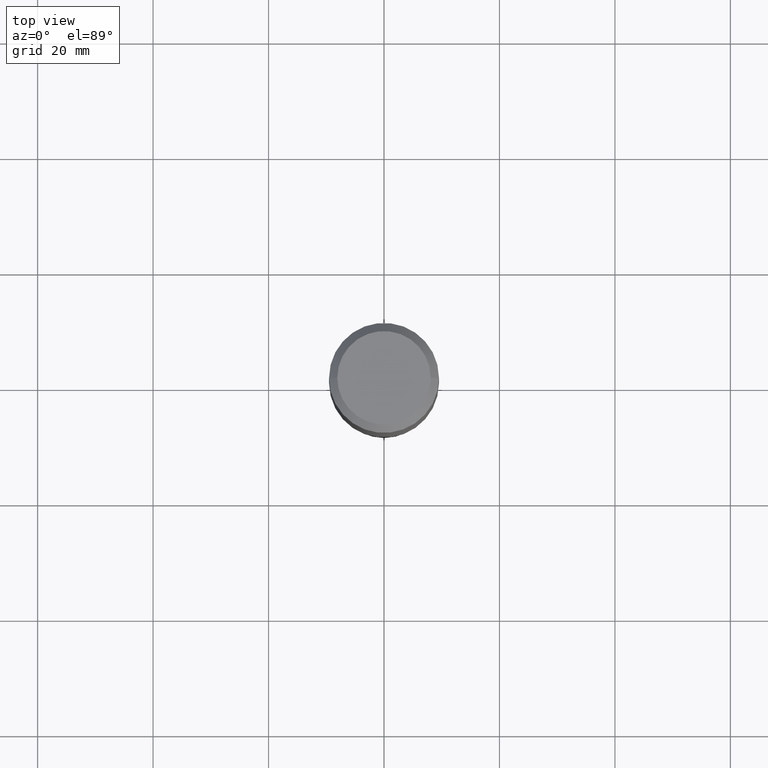
[diagram: clean part render]
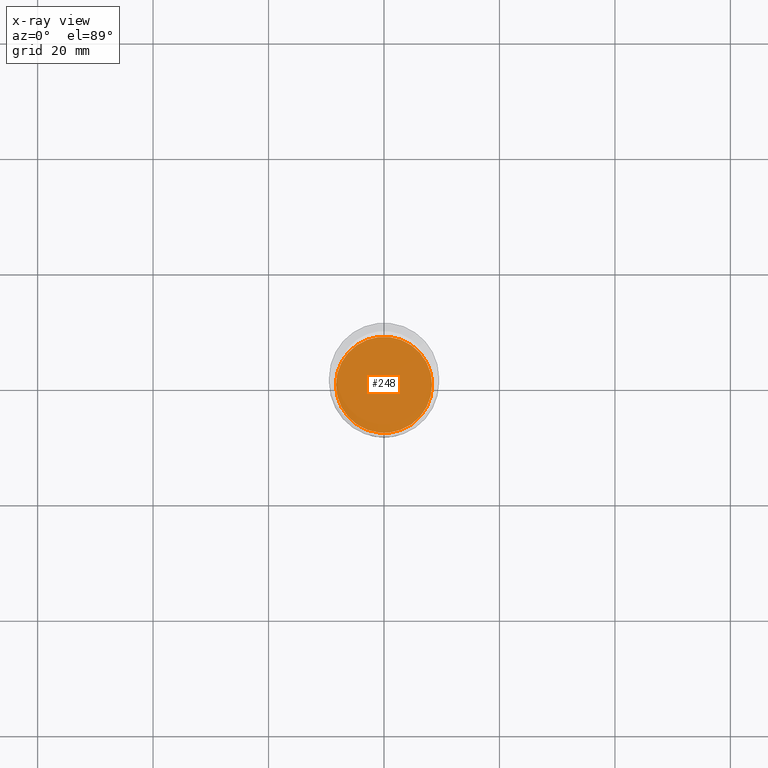
[diagram: x-ray — body ghosted, one internal face saturated and labeled with its STEP entity id]
A machine part, top view, then the same camera in x-ray: the body is ghosted and one INTERNAL B-rep face — a face not visible from any outside direction — is saturated and labeled: STEP entity #248.
In plain terms, the highlighted planar face has unit normal (-0, 0, 1).
Its self-contained STEP definition (entity closure, byte-faithful):
#5 = ORIENTED_EDGE ( 'NONE', *, *, #203, .F. ) ;
#27 = AXIS2_PLACEMENT_3D ( 'NONE', #117, #322, #362 ) ;
#43 = CIRCLE ( 'NONE', #438, 0.3276000000000000578 ) ;
#47 = EDGE_LOOP ( 'NONE', ( #173, #5 ) ) ;
#117 = CARTESIAN_POINT ( 'NONE',  ( 1.002231447305292995E-28, -5.062918380557678250E-15, -2.776199999999999779 ) ) ;
#118 = CIRCLE ( 'NONE', #422, 0.3276000000000000578 ) ;
#163 = DIRECTION ( 'NONE',  ( -2.445468806185136597E-29, 3.491481338843145583E-15, 1.000000000000000000 ) ) ;
#173 = ORIENTED_EDGE ( 'NONE', *, *, #379, .F. ) ;
#192 = DIRECTION ( 'NONE',  ( 1.000000000000000000, -6.982962677686269866E-15, 0.000000000000000000 ) ) ;
#202 = DIRECTION ( 'NONE',  ( 1.000000000000000000, -6.982962677686269866E-15, 0.000000000000000000 ) ) ;
#203 = EDGE_CURVE ( 'NONE', #310, #377, #43, .T. ) ;
#223 = CARTESIAN_POINT ( 'NONE',  ( 6.789110499731174313E-29, -9.693050492896336646E-15, -2.776199999999999335 ) ) ;
#233 = PLANE ( 'NONE',  #27 ) ;
#248 = ADVANCED_FACE ( 'NONE', ( #254 ), #233, .F. ) ;
#254 = FACE_OUTER_BOUND ( 'NONE', #47, .T. ) ;
#310 = VERTEX_POINT ( 'NONE', #421 ) ;
#322 = DIRECTION ( 'NONE',  ( -2.438088387897960049E-29, 3.491481338843145188E-15, 1.000000000000000000 ) ) ;
#332 = CARTESIAN_POINT ( 'NONE',  ( 0.3276000000000000578, -1.198066906610636012E-14, -2.776199999999999335 ) ) ;
#362 = DIRECTION ( 'NONE',  ( 1.000000000000000000, -6.982962677686265922E-15, 4.876176775795935793E-29 ) ) ;
#365 = DIRECTION ( 'NONE',  ( -2.445468806185136597E-29, 3.491481338843145583E-15, 1.000000000000000000 ) ) ;
#377 = VERTEX_POINT ( 'NONE', #332 ) ;
#379 = EDGE_CURVE ( 'NONE', #377, #310, #118, .T. ) ;
#381 = CARTESIAN_POINT ( 'NONE',  ( 6.789110499731174313E-29, -9.693050492896336646E-15, -2.776199999999999335 ) ) ;
#421 = CARTESIAN_POINT ( 'NONE',  ( -0.3276000000000000578, -7.362663263372138798E-15, -2.776199999999999335 ) ) ;
#422 = AXIS2_PLACEMENT_3D ( 'NONE', #381, #163, #202 ) ;
#438 = AXIS2_PLACEMENT_3D ( 'NONE', #223, #365, #192 ) ;